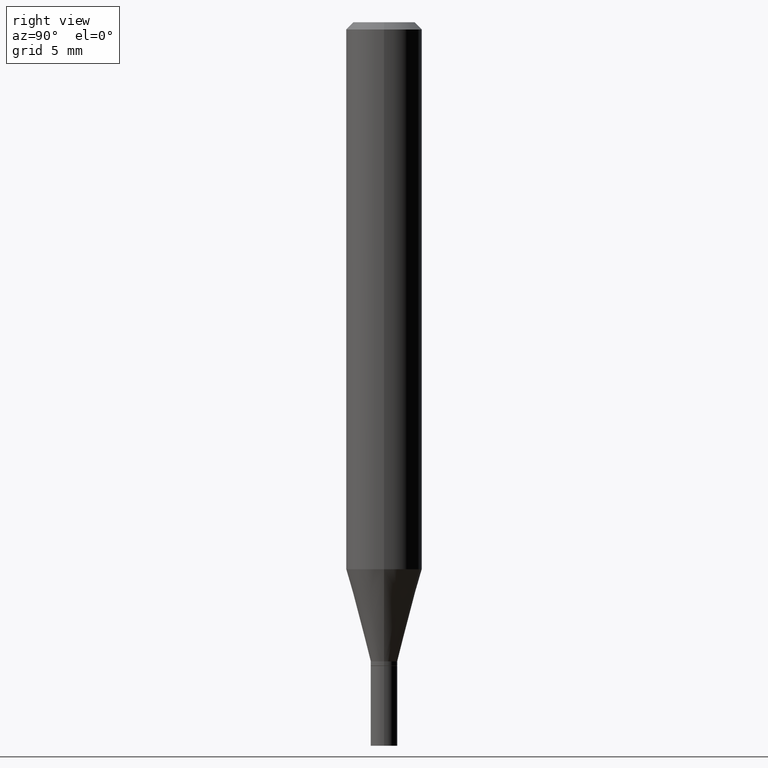
[diagram: clean part render]
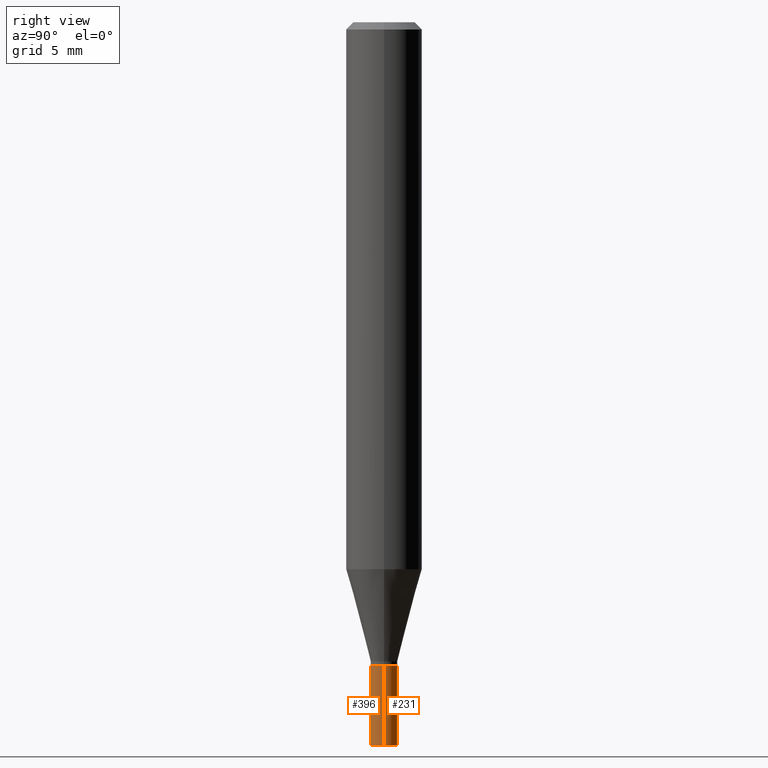
[diagram: same view with one multi-face feature highlighted, each face labeled with its STEP entity id]
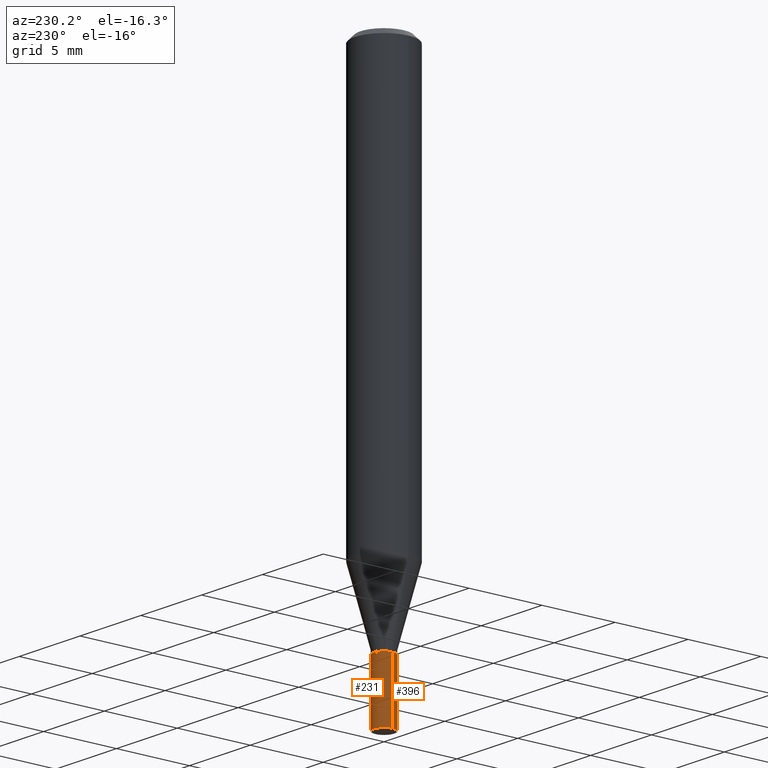
[diagram: same view with one multi-face feature highlighted, each face labeled with its STEP entity id]
A machine part, right view. The highlighted faces form ONE feature: a constant-radius fillet chain: 2 tangent blend faces with common blend radius 0.6998 mm. The faces share edges in the B-rep.
A second angle (auxiliary view) of the same feature is appended — it is thin or edge-on in the first view.
Their STEP definitions:
[1] entity #396 (Cylinder):
#22 = VERTEX_POINT ( 'NONE', #439 ) ;
#26 = DIRECTION ( 'NONE',  ( 1.000000000000000000, -6.982962677686256455E-15, 0.000000000000000000 ) ) ;
#28 = CARTESIAN_POINT ( 'NONE',  ( 3.263722668734683183E-29, -4.659730994820061919E-15, -1.334600000000000009 ) ) ;
#41 = CARTESIAN_POINT ( 'NONE',  ( -0.02755000000000000157, -4.752721977840483101E-15, -1.500000000000000222 ) ) ;
#42 = DIRECTION ( 'NONE',  ( -2.445468806185136597E-29, 3.491481338843145583E-15, 1.000000000000000000 ) ) ;
#64 = EDGE_LOOP ( 'NONE', ( #375, #128, #463, #422 ) ) ;
#67 = AXIS2_PLACEMENT_3D ( 'NONE', #247, #262, #90 ) ;
#90 = DIRECTION ( 'NONE',  ( 1.000000000000000000, -6.982962677686265922E-15, 4.876176775795936353E-29 ) ) ;
#95 = AXIS2_PLACEMENT_3D ( 'NONE', #28, #174, #26 ) ;
#102 = DIRECTION ( 'NONE',  ( 1.000000000000000000, -6.982962677686256455E-15, 0.000000000000000000 ) ) ;
#108 = CARTESIAN_POINT ( 'NONE',  ( 0.02755000000000000157, -4.852111616590317923E-15, -1.334600000000000009 ) ) ;
#110 = CARTESIAN_POINT ( 'NONE',  ( -0.02755000000000000157, 1.957545237019076124E-16, -1.355166617365226565E-30 ) ) ;
#123 = CIRCLE ( 'NONE', #450, 0.02755000000000000157 ) ;
#128 = ORIENTED_EDGE ( 'NONE', *, *, #357, .T. ) ;
#139 = CARTESIAN_POINT ( 'NONE',  ( -0.02755000000000000157, -4.752721977840483101E-15, -1.334600000000000009 ) ) ;
#145 = EDGE_CURVE ( 'NONE', #22, #389, #334, .T. ) ;
#174 = DIRECTION ( 'NONE',  ( -2.445468806185136597E-29, 3.491481338843145583E-15, 1.000000000000000000 ) ) ;
#190 = DIRECTION ( 'NONE',  ( -2.445468806185136877E-29, 3.491481338843145188E-15, 1.000000000000000000 ) ) ;
#220 = EDGE_CURVE ( 'NONE', #416, #389, #244, .T. ) ;
#233 = VECTOR ( 'NONE', #190, 39.37007874015748143 ) ;
#244 = CIRCLE ( 'NONE', #95, 0.02755000000000000157 ) ;
#247 = CARTESIAN_POINT ( 'NONE',  ( 0.000000000000000000, 0.000000000000000000, 0.000000000000000000 ) ) ;
#262 = DIRECTION ( 'NONE',  ( -2.445468806185136597E-29, 3.491481338843145583E-15, 1.000000000000000000 ) ) ;
#272 = CYLINDRICAL_SURFACE ( 'NONE', #67, 0.02755000000000000157 ) ;
#324 = VECTOR ( 'NONE', #395, 39.37007874015748143 ) ;
#334 = LINE ( 'NONE', #364, #233 ) ;
#351 = CARTESIAN_POINT ( 'NONE',  ( 3.668203209277704895E-29, -5.237222008264718177E-15, -1.500000000000000222 ) ) ;
#357 = EDGE_CURVE ( 'NONE', #447, #22, #123, .T. ) ;
#364 = CARTESIAN_POINT ( 'NONE',  ( 0.02755000000000000157, -1.923806217702566451E-16, 1.343386701731780509E-30 ) ) ;
#375 = ORIENTED_EDGE ( 'NONE', *, *, #438, .F. ) ;
#389 = VERTEX_POINT ( 'NONE', #108 ) ;
#391 = FACE_OUTER_BOUND ( 'NONE', #64, .T. ) ;
#395 = DIRECTION ( 'NONE',  ( -2.445468806185136877E-29, 3.491481338843145188E-15, 1.000000000000000000 ) ) ;
#396 = ADVANCED_FACE ( 'NONE', ( #391 ), #272, .T. ) ;
#416 = VERTEX_POINT ( 'NONE', #139 ) ;
#422 = ORIENTED_EDGE ( 'NONE', *, *, #220, .F. ) ;
#437 = LINE ( 'NONE', #110, #324 ) ;
#438 = EDGE_CURVE ( 'NONE', #447, #416, #437, .T. ) ;
#439 = CARTESIAN_POINT ( 'NONE',  ( 0.02755000000000000157, -5.429602630034974970E-15, -1.500000000000000222 ) ) ;
#447 = VERTEX_POINT ( 'NONE', #41 ) ;
#450 = AXIS2_PLACEMENT_3D ( 'NONE', #351, #42, #102 ) ;
#463 = ORIENTED_EDGE ( 'NONE', *, *, #145, .T. ) ;
[2] entity #231 (Cylinder):
#1 = AXIS2_PLACEMENT_3D ( 'NONE', #428, #238, #127 ) ;
#22 = VERTEX_POINT ( 'NONE', #439 ) ;
#27 = ORIENTED_EDGE ( 'NONE', *, *, #145, .F. ) ;
#40 = CARTESIAN_POINT ( 'NONE',  ( 3.668203209277704895E-29, -5.237222008264718177E-15, -1.500000000000000222 ) ) ;
#41 = CARTESIAN_POINT ( 'NONE',  ( -0.02755000000000000157, -4.752721977840483101E-15, -1.500000000000000222 ) ) ;
#92 = EDGE_LOOP ( 'NONE', ( #441, #207, #216, #27 ) ) ;
#108 = CARTESIAN_POINT ( 'NONE',  ( 0.02755000000000000157, -4.852111616590317923E-15, -1.334600000000000009 ) ) ;
#110 = CARTESIAN_POINT ( 'NONE',  ( -0.02755000000000000157, 1.957545237019076124E-16, -1.355166617365226565E-30 ) ) ;
#127 = DIRECTION ( 'NONE',  ( 1.000000000000000000, -6.982962677686256455E-15, 0.000000000000000000 ) ) ;
#139 = CARTESIAN_POINT ( 'NONE',  ( -0.02755000000000000157, -4.752721977840483101E-15, -1.334600000000000009 ) ) ;
#145 = EDGE_CURVE ( 'NONE', #22, #389, #334, .T. ) ;
#147 = EDGE_CURVE ( 'NONE', #22, #447, #332, .T. ) ;
#164 = CARTESIAN_POINT ( 'NONE',  ( 0.000000000000000000, 0.000000000000000000, 0.000000000000000000 ) ) ;
#190 = DIRECTION ( 'NONE',  ( -2.445468806185136877E-29, 3.491481338843145188E-15, 1.000000000000000000 ) ) ;
#193 = AXIS2_PLACEMENT_3D ( 'NONE', #40, #403, #356 ) ;
#207 = ORIENTED_EDGE ( 'NONE', *, *, #438, .T. ) ;
#211 = CIRCLE ( 'NONE', #1, 0.02755000000000000157 ) ;
#216 = ORIENTED_EDGE ( 'NONE', *, *, #295, .F. ) ;
#231 = ADVANCED_FACE ( 'NONE', ( #461 ), #455, .T. ) ;
#233 = VECTOR ( 'NONE', #190, 39.37007874015748143 ) ;
#238 = DIRECTION ( 'NONE',  ( -2.445468806185136597E-29, 3.491481338843145583E-15, 1.000000000000000000 ) ) ;
#295 = EDGE_CURVE ( 'NONE', #389, #416, #211, .T. ) ;
#324 = VECTOR ( 'NONE', #395, 39.37007874015748143 ) ;
#332 = CIRCLE ( 'NONE', #193, 0.02755000000000000157 ) ;
#334 = LINE ( 'NONE', #364, #233 ) ;
#352 = AXIS2_PLACEMENT_3D ( 'NONE', #164, #421, #380 ) ;
#356 = DIRECTION ( 'NONE',  ( 1.000000000000000000, -6.982962677686256455E-15, 0.000000000000000000 ) ) ;
#364 = CARTESIAN_POINT ( 'NONE',  ( 0.02755000000000000157, -1.923806217702566451E-16, 1.343386701731780509E-30 ) ) ;
#380 = DIRECTION ( 'NONE',  ( 1.000000000000000000, -6.982962677686265922E-15, 4.876176775795936353E-29 ) ) ;
#389 = VERTEX_POINT ( 'NONE', #108 ) ;
#395 = DIRECTION ( 'NONE',  ( -2.445468806185136877E-29, 3.491481338843145188E-15, 1.000000000000000000 ) ) ;
#403 = DIRECTION ( 'NONE',  ( -2.445468806185136597E-29, 3.491481338843145583E-15, 1.000000000000000000 ) ) ;
#416 = VERTEX_POINT ( 'NONE', #139 ) ;
#421 = DIRECTION ( 'NONE',  ( -2.445468806185136597E-29, 3.491481338843145583E-15, 1.000000000000000000 ) ) ;
#428 = CARTESIAN_POINT ( 'NONE',  ( 3.263722668734683183E-29, -4.659730994820061919E-15, -1.334600000000000009 ) ) ;
#437 = LINE ( 'NONE', #110, #324 ) ;
#438 = EDGE_CURVE ( 'NONE', #447, #416, #437, .T. ) ;
#439 = CARTESIAN_POINT ( 'NONE',  ( 0.02755000000000000157, -5.429602630034974970E-15, -1.500000000000000222 ) ) ;
#441 = ORIENTED_EDGE ( 'NONE', *, *, #147, .T. ) ;
#447 = VERTEX_POINT ( 'NONE', #41 ) ;
#455 = CYLINDRICAL_SURFACE ( 'NONE', #352, 0.02755000000000000157 ) ;
#461 = FACE_OUTER_BOUND ( 'NONE', #92, .T. ) ;